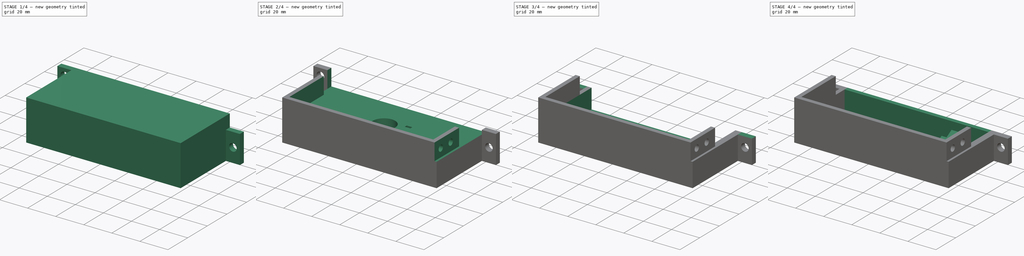
[diagram: build sequence overview — one tinted view per stage of 4, left to right]
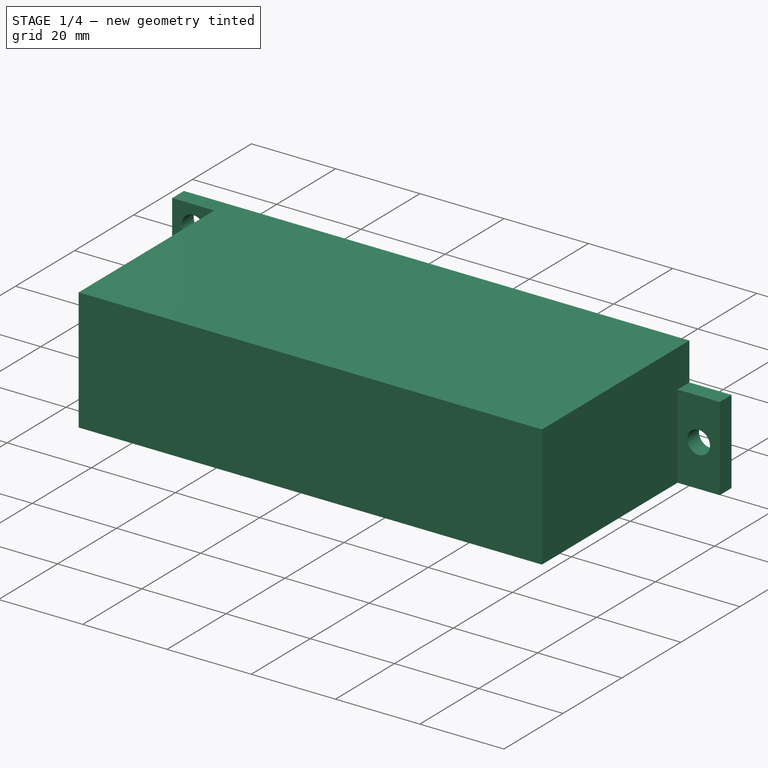
[diagram: stage 1 of 4 — iso view after this stage's code; geometry added in this stage tinted green]
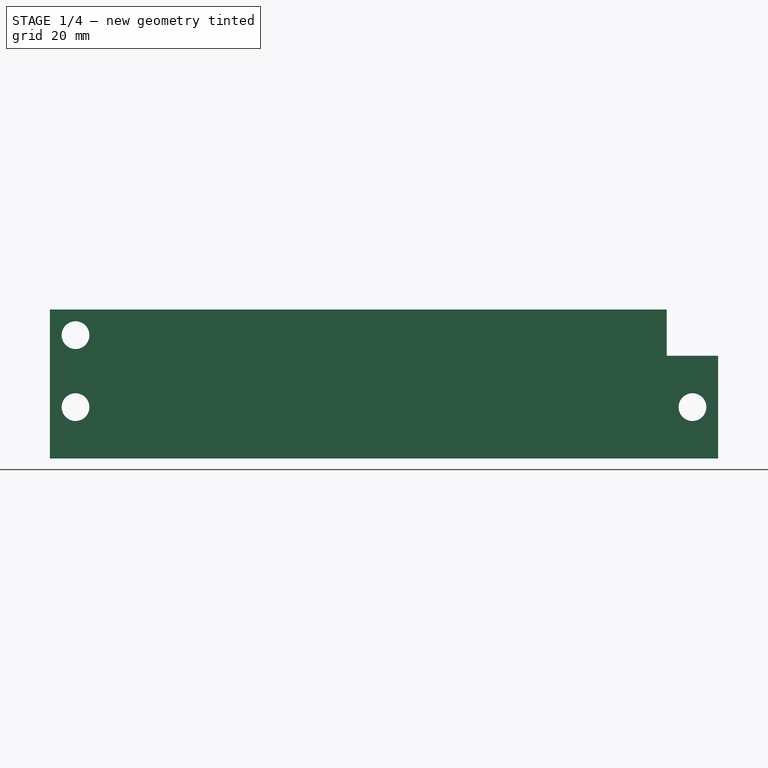
[diagram: stage 1 of 4 — front view after this stage's code; geometry added in this stage tinted green]
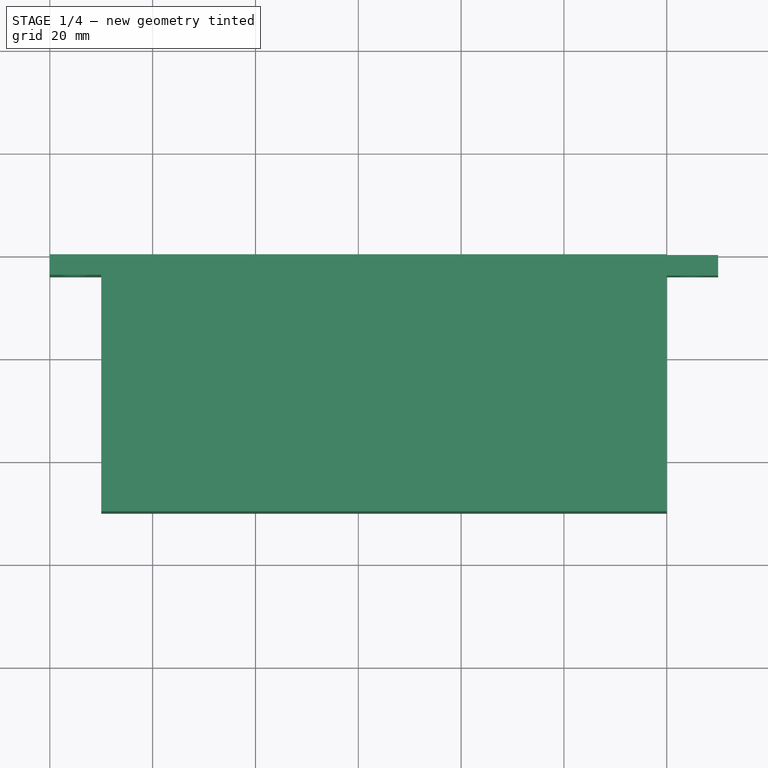
[diagram: stage 1 of 4 — top view after this stage's code; geometry added in this stage tinted green]
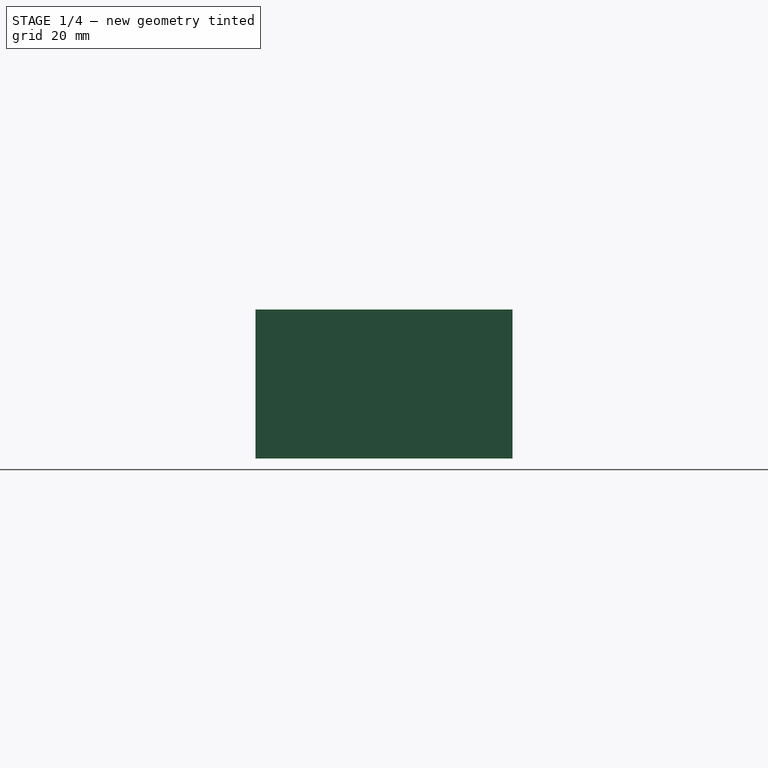
[diagram: stage 1 of 4 — right view after this stage's code; geometry added in this stage tinted green]
FCSTD DOCUMENT  (FreeCAD 0.18RUnknown)
Label: psu_holder
License: All rights reserved
LicenseURL: http://en.wikipedia.org/wiki/All_rights_reserved
objects: Sketcher::SketchObject×9, PartDesign::Pocket×6, PartDesign::Pad×3, PartDesign::Line×1, PartDesign::PolarPattern×1, PartDesign::Body×1
note: 30 computed .brp shape members not serialized (recipe doc carries the construction recipe); baked Part::Feature solids carry a one-line shape summary decoded from their .brp

FEATURE [Sketcher::SketchObject] Sketch
  MapMode = 5
  Support = -> [XY_Plane]
  sketch-geometry (8):
    g0: LineSegment StartX=0 StartY=0 StartZ=0 EndX=130 EndY=0 EndZ=0
    g1: LineSegment StartX=130 StartY=0 StartZ=0 EndX=130 EndY=-4 EndZ=0
    g2: LineSegment StartX=130 StartY=-4 StartZ=0 EndX=120 EndY=-4 EndZ=0
    g3: LineSegment StartX=120 StartY=-4 StartZ=0 EndX=120 EndY=-50 EndZ=0
    g4: LineSegment StartX=120 StartY=-50 StartZ=0 EndX=10 EndY=-50 EndZ=0
    g5: LineSegment StartX=10 StartY=-50 StartZ=0 EndX=10 EndY=-4 EndZ=0
    g6: LineSegment StartX=10 StartY=-4 StartZ=0 EndX=0 EndY=-4 EndZ=0
    g7: LineSegment StartX=0 StartY=-4 StartZ=0 EndX=0 EndY=0 EndZ=0
  constraints (23):
    c: Coincident(g-1,g0)
    c: PointOnObject(g0,g-1)
    c: Coincident(g0,g1)
    c: Vertical(g1)
    c: Coincident(g1,g2)
    c: Horizontal(g2)
    c: Coincident(g2,g3)
    c: Coincident(g3,g4)
    c: Horizontal(g4)
    c: Coincident(g4,g5)
    c: Vertical(g5)
    c: Coincident(g5,g6)
    c: Coincident(g6,g7)
    c: Coincident(g7,g0)
    c: Horizontal(g6)
    c: Vertical(g3)
    c: Equal(g6,g2)
    c: DistanceX(g6,g6) = 10
    c: PointOnObject(g6,g-2)
    c: Equal(g7,g1)
    c: DistanceY(g7,g7) = 4
    c: DistanceX(g4,g4) = 110
    c: DistanceY(g3,g0) = 50
FEATURE [PartDesign::Pad] Pad
  Length = 29
  Length2 = 100
  Profile = -> Sketch
  Type = 0
FEATURE [Sketcher::SketchObject] Sketch001
  ExternalGeometry = -> [Pad]
  MapMode = 5
  Placement = pos=(0,-50,0) rot=(1,0,0;1.5708rad)
  Support = -> [Pad]
  sketch-geometry (7):
    g0: Circle CenterX=5 CenterY=10 CenterZ=0 NormalX=0 NormalY=0 NormalZ=1 AngleXU=0 Radius=2.7
    g1: Circle CenterX=5 CenterY=24 CenterZ=0 NormalX=0 NormalY=0 NormalZ=1 AngleXU=0 Radius=2.7
    g2: Circle CenterX=125 CenterY=10 CenterZ=0 NormalX=0 NormalY=0 NormalZ=1 AngleXU=0 Radius=2.7
    g3: LineSegment StartX=120 StartY=29 StartZ=0 EndX=130 EndY=29 EndZ=0
    g4: LineSegment StartX=130 StartY=29 StartZ=0 EndX=130 EndY=20 EndZ=0
    g5: LineSegment StartX=130 StartY=20 StartZ=0 EndX=120 EndY=20 EndZ=0
    g6: LineSegment StartX=120 StartY=20 StartZ=0 EndX=120 EndY=29 EndZ=0
  constraints (19):
    c: Equal(g1,g0)
    c: Equal(g0,g2)
    c: Radius(g0) = 2.7
    c: Vertical(g1,g0)
    c: Horizontal(g0,g2)
    c: DistanceX(g-1,g0) = 5
    c: DistanceY(g-1,g0) = 10
    c: DistanceY(g1,g-3) = 5
    c: DistanceX(g2,g-4) = 5
    c: Coincident(g3,g4)
    c: Coincident(g4,g5)
    c: Coincident(g5,g6)
    c: Coincident(g6,g3)
    c: Horizontal(g5)
    c: Vertical(g4)
    c: Vertical(g6)
    c: Coincident(g3,g-5)
    c: Coincident(g3,g-5)
    c: DistanceY(g2,g4) = 10
FEATURE [PartDesign::Pocket] Pocket
  BaseFeature = -> Pad
  Length = 5
  Length2 = 100
  Profile = -> Sketch001
  Type = 1
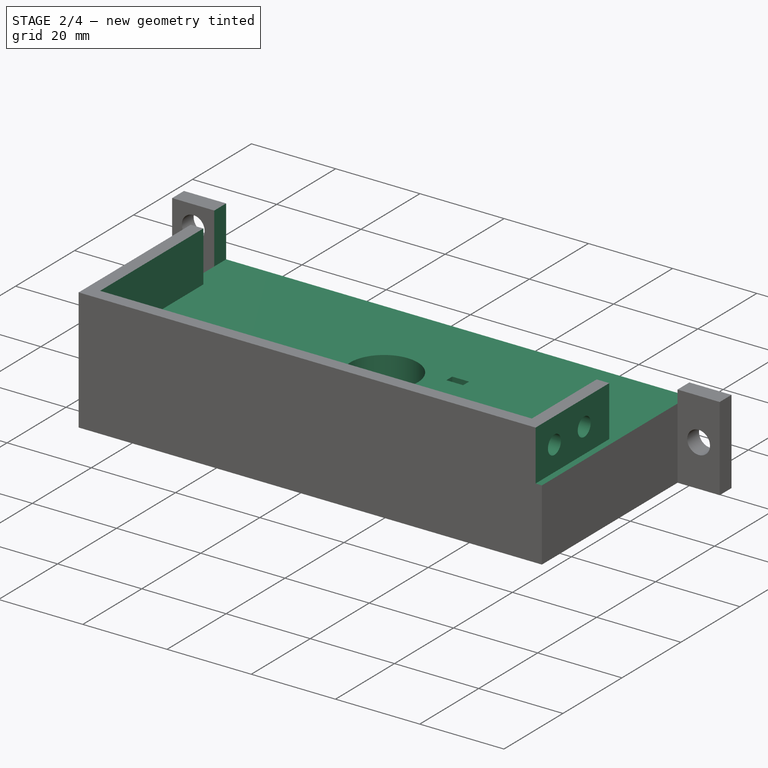
[diagram: stage 2 of 4 — iso view after this stage's code; geometry added in this stage tinted green]
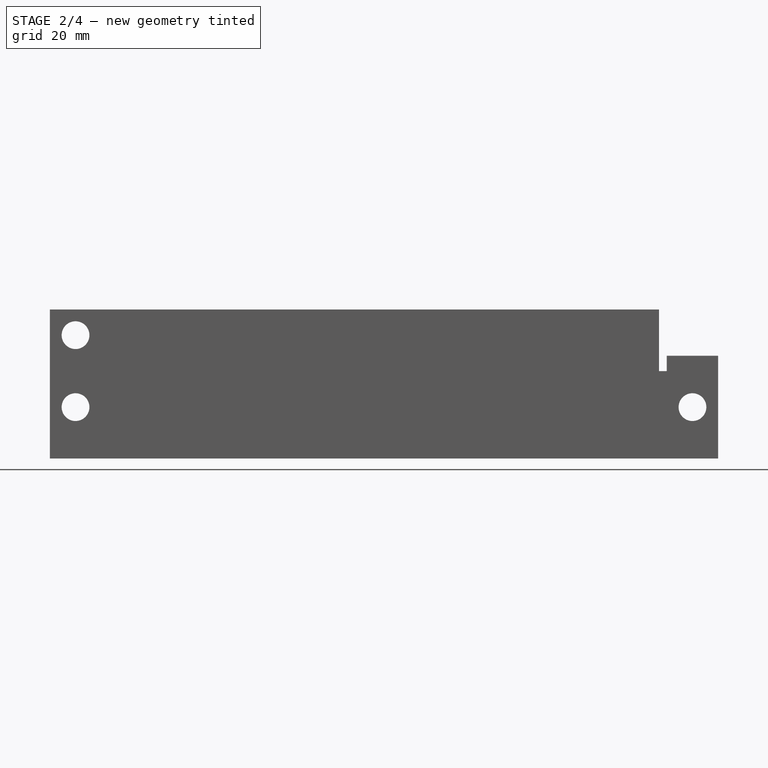
[diagram: stage 2 of 4 — front view after this stage's code; geometry added in this stage tinted green]
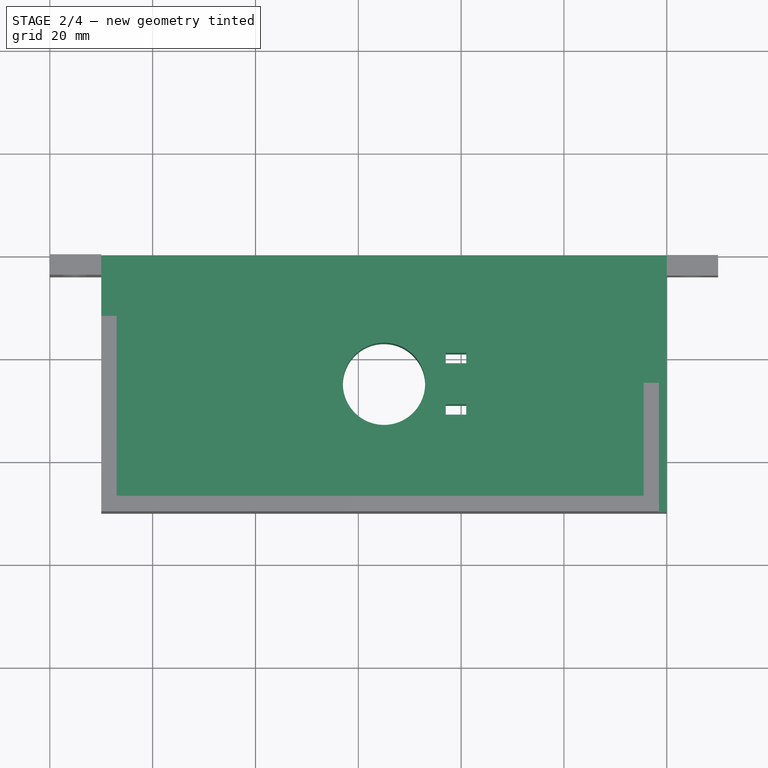
[diagram: stage 2 of 4 — top view after this stage's code; geometry added in this stage tinted green]
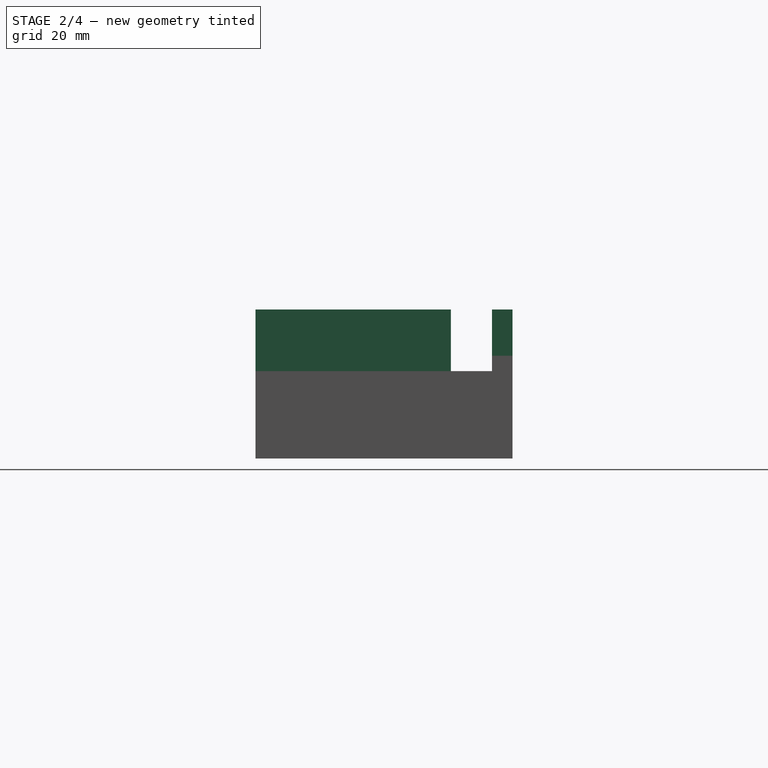
[diagram: stage 2 of 4 — right view after this stage's code; geometry added in this stage tinted green]
FEATURE [Sketcher::SketchObject] Sketch002
  ExternalGeometry = -> [Pocket]
  MapMode = 5
  Placement = pos=(0,0,29) rot=(0,0,1;0rad)
  Support = -> [Pocket]
  sketch-geometry (10):
    g0: LineSegment StartX=10 StartY=0 StartZ=0 EndX=120 EndY=0 EndZ=0
    g1: LineSegment StartX=120 StartY=0 StartZ=0 EndX=120 EndY=-50 EndZ=0
    g2: LineSegment StartX=120 StartY=-50 StartZ=0 EndX=118.5 EndY=-50 EndZ=0
    g3: LineSegment StartX=118.5 StartY=-50 StartZ=0 EndX=118.5 EndY=-25 EndZ=0
    g4: LineSegment StartX=118.5 StartY=-25 StartZ=0 EndX=115.5 EndY=-25 EndZ=0
    g5: LineSegment StartX=115.5 StartY=-25 StartZ=0 EndX=115.5 EndY=-47 EndZ=0
    g6: LineSegment StartX=115.5 StartY=-47 StartZ=0 EndX=13 EndY=-47 EndZ=0
    g7: LineSegment StartX=13 StartY=-47 StartZ=0 EndX=13 EndY=-12 EndZ=0
    g8: LineSegment StartX=13 StartY=-12 StartZ=0 EndX=10 EndY=-12 EndZ=0
    g9: LineSegment StartX=10 StartY=-12 StartZ=0 EndX=10 EndY=0 EndZ=0
  constraints (29):
    c: Horizontal(g0)
    c: Coincident(g0,g1)
    c: Vertical(g1)
    c: Coincident(g1,g2)
    c: Coincident(g2,g3)
    c: Vertical(g3)
    c: Coincident(g3,g4)
    c: Coincident(g4,g5)
    c: Vertical(g5)
    c: Coincident(g5,g6)
    c: Horizontal(g6)
    c: Coincident(g6,g7)
    c: Coincident(g7,g8)
    c: Coincident(g8,g9)
    c: Coincident(g9,g0)
    c: Horizontal(g0,g-1)
    c: PointOnObject(g8,g-3)
    c: Vertical(g9)
    c: DistanceY(g9,g9) = 12
    c: Horizontal(g8)
    c: Vertical(g7)
    c: DistanceX(g8,g8) = 3
    c: DistanceY(g-3,g6) = 3
    c: Horizontal(g4)
    c: DistanceX(g2,g2) = 1.5
    c: DistanceX(g4,g4) = 3
    c: DistanceY(g3,g3) = 25
    c: Horizontal(g2)
    c: Coincident(g1,g-4)
FEATURE [PartDesign::Pocket] Pocket001
  BaseFeature = -> Pocket
  Length = 12
  Length2 = 100
  Profile = -> Sketch002
  Type = 0
FEATURE [Sketcher::SketchObject] Sketch005
  ExternalGeometry = -> [Pocket001]
  MapMode = 5
  Placement = pos=(118.5,0,0) rot=(0.57735,0.57735,0.57735;2.0944rad)
  Support = -> [Pocket001]
  sketch-geometry (2):
    g0: Circle CenterX=-43.6 CenterY=22.9 CenterZ=0 NormalX=0 NormalY=0 NormalZ=1 AngleXU=0 Radius=2.2
    g1: Circle CenterX=-33.5 CenterY=22.9 CenterZ=0 NormalX=0 NormalY=0 NormalZ=1 AngleXU=0 Radius=2.2
  constraints (6):
    c: Horizontal(g1,g0)
    c: Equal(g1,g0)
    c: DistanceX(g0,g1) = 10.1
    c: Radius(g0) = 2.2
    c: DistanceX(g-3,g0) = 6.4
    c: DistanceY(g-3,g0) = 5.9
FEATURE [PartDesign::Pocket] Pocket003
  BaseFeature = -> Pocket001
  Length = 10
  Length2 = 100
  Profile = -> Sketch005
  Type = 0
FEATURE [Sketcher::SketchObject] Sketch006
  ExternalGeometry = -> [Pocket003]
  MapMode = 5
  Placement = pos=(0,0,0) rot=(1,0,0;3.14159rad)
  Support = -> [Pocket003]
  sketch-geometry (13):
    g0: Circle CenterX=65 CenterY=25 CenterZ=0 NormalX=0 NormalY=0 NormalZ=1 AngleXU=0 Radius=8
    g1: LineSegment [constr] StartX=65 StartY=25 StartZ=0 EndX=65 EndY=50 EndZ=0
    g2: LineSegment [constr] StartX=65 StartY=25 StartZ=0 EndX=65 EndY=0 EndZ=0
    g3: LineSegment [constr] StartX=65 StartY=25 StartZ=0 EndX=10 EndY=25 EndZ=0
    g4: LineSegment [constr] StartX=65 StartY=25 StartZ=0 EndX=120 EndY=25 EndZ=0
    g5: LineSegment StartX=77 StartY=31 StartZ=0 EndX=81 EndY=31 EndZ=0
    g6: LineSegment StartX=81 StartY=31 StartZ=0 EndX=81 EndY=29 EndZ=0
    g7: LineSegment StartX=81 StartY=29 StartZ=0 EndX=77 EndY=29 EndZ=0
    g8: LineSegment StartX=77 StartY=29 StartZ=0 EndX=77 EndY=31 EndZ=0
    g9: LineSegment StartX=77 StartY=19 StartZ=0 EndX=81 EndY=19 EndZ=0
    g10: LineSegment StartX=81 StartY=19 StartZ=0 EndX=81 EndY=21 EndZ=0
    g11: LineSegment StartX=81 StartY=21 StartZ=0 EndX=77 EndY=21 EndZ=0
    g12: LineSegment StartX=77 StartY=21 StartZ=0 EndX=77 EndY=19 EndZ=0
  constraints (39):
    c: Radius(g0) = 8
    c: Coincident(g1,g0)
    c: Vertical(g1)
    c: Coincident(g2,g0)
    c: PointOnObject(g2,g-1)
    c: Vertical(g2)
    c: Coincident(g3,g0)
    c: Horizontal(g3)
    c: Coincident(g4,g0)
    c: Horizontal(g4)
    c: Equal(g4,g3)
    c: Equal(g1,g2)
    c: Coincident(g5,g6)
    c: Coincident(g6,g7)
    c: Coincident(g7,g8)
    c: Coincident(g8,g5)
    c: Horizontal(g5)
    c: Horizontal(g7)
    c: Vertical(g6)
    c: Vertical(g8)
    c: DistanceX(g5,g5) = 4
    c: DistanceY(g6,g6) = 2
    c: DistanceX(g0,g7) = 12  'd1'
    c: DistanceY(g0,g7) = 4
    c: Coincident(g9,g10)
    c: Coincident(g10,g11)
    c: Coincident(g11,g12)
    c: Coincident(g12,g9)
    c: Horizontal(g9)
    c: Horizontal(g11)
    c: Vertical(g10)
    c: Vertical(g12)
    c: DistanceX(g0,g11) = 12
    c: DistanceY(g11,g0) = 4
    c: Equal(g5,g11)
    c: Equal(g8,g12)
    c: PointOnObject(g1,g-3)
    c: PointOnObject(g3,g-5)
    c: PointOnObject(g4,g-6)
FEATURE [PartDesign::Pocket] Pocket004
  BaseFeature = -> Pocket003
  Length = 5
  Length2 = 100
  Profile = -> Sketch006
  Type = 1
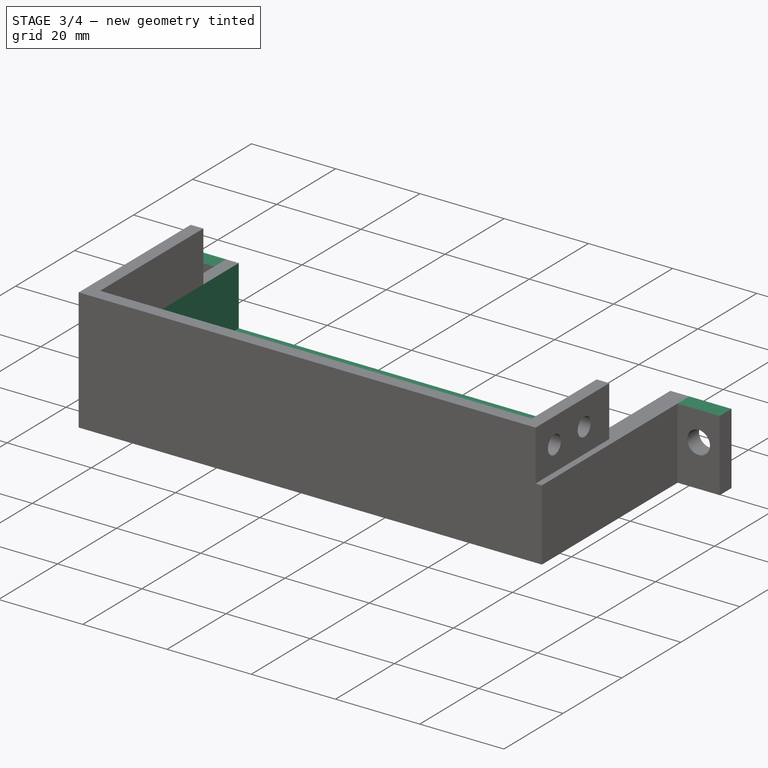
[diagram: stage 3 of 4 — iso view after this stage's code; geometry added in this stage tinted green]
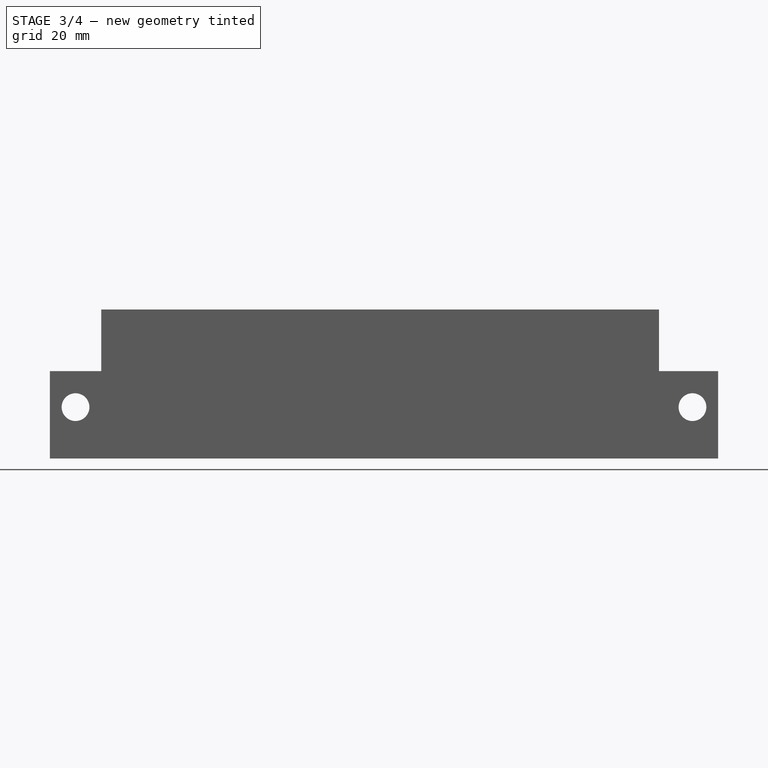
[diagram: stage 3 of 4 — front view after this stage's code; geometry added in this stage tinted green]
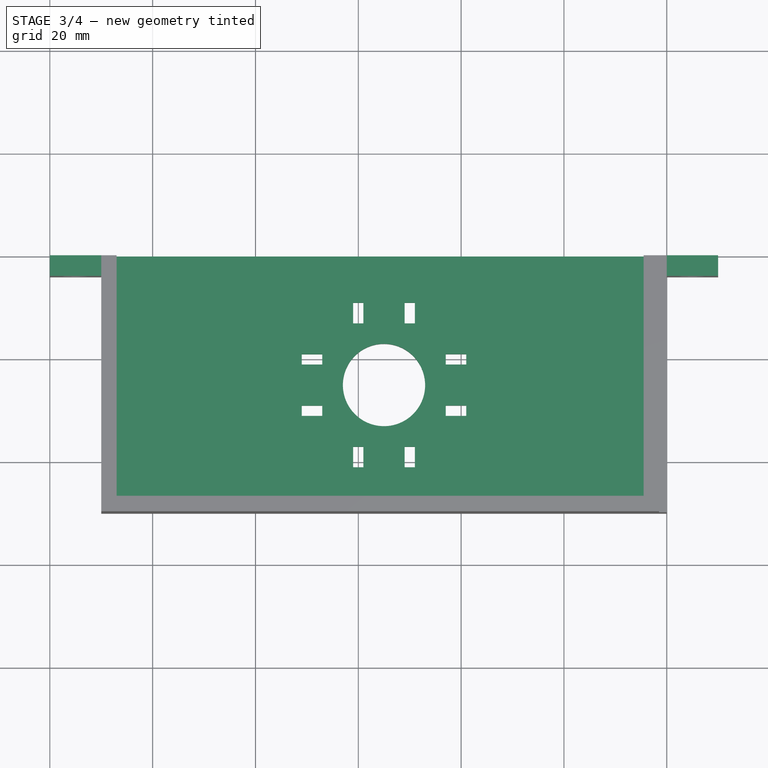
[diagram: stage 3 of 4 — top view after this stage's code; geometry added in this stage tinted green]
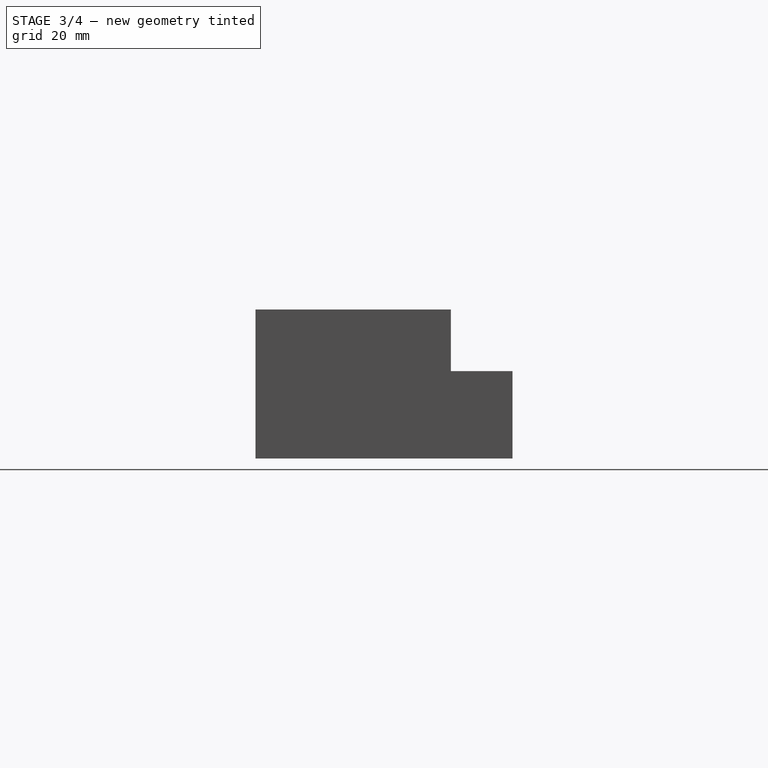
[diagram: stage 3 of 4 — right view after this stage's code; geometry added in this stage tinted green]
FEATURE [PartDesign::Line] DatumLine
  AttacherType = Attacher::AttachEngineLine
  MapMode = 19
  Placement = pos=(65,-25,17) rot=(-1,0,0;3.14159rad)
  Support = -> [Pocket004]
FEATURE [PartDesign::PolarPattern] PolarPattern
  Angle = 360
  Axis = -> DatumLine
  BaseFeature = -> Pocket004
  Occurrences = 4
  Originals = -> [Pocket004]
FEATURE [Sketcher::SketchObject] Sketch007
  ExternalGeometry = -> [PolarPattern]
  MapMode = 5
  Placement = pos=(0,0,29) rot=(0,0,1;0rad)
  Support = -> [PolarPattern]
  sketch-geometry (4):
    g0: LineSegment StartX=13 StartY=-47 StartZ=0 EndX=115.5 EndY=-47 EndZ=0
    g1: LineSegment StartX=115.5 StartY=-47 StartZ=0 EndX=115.5 EndY=0 EndZ=0
    g2: LineSegment StartX=115.5 StartY=0 StartZ=0 EndX=13 EndY=0 EndZ=0
    g3: LineSegment StartX=13 StartY=0 StartZ=0 EndX=13 EndY=-47 EndZ=0
  constraints (8):
    c: Coincident(g0,g1)
    c: Coincident(g1,g2)
    c: Coincident(g2,g3)
    c: Coincident(g3,g0)
    c: Horizontal(g2)
    c: Vertical(g1)
    c: Vertical(g3)
    c: PointOnObject(g1,g-1)
FEATURE [PartDesign::Pocket] Pocket005
  BaseFeature = -> PolarPattern
  Length = 26
  Length2 = 100
  Profile = -> Sketch007
  Type = 0
FEATURE [Sketcher::SketchObject] Sketch008
  ExternalGeometry = -> [Pocket005]
  MapMode = 5
  Placement = pos=(0,0,0) rot=(0,0.707107,0.707107;3.14159rad)
  Support = -> [Pocket005]
  sketch-geometry (4):
    g0: LineSegment StartX=-145 StartY=47 StartZ=0 EndX=5 EndY=47 EndZ=0
    g1: LineSegment StartX=5 StartY=47 StartZ=0 EndX=5 EndY=17 EndZ=0
    g2: LineSegment StartX=5 StartY=17 StartZ=0 EndX=-145 EndY=17 EndZ=0
    g3: LineSegment StartX=-145 StartY=17 StartZ=0 EndX=-145 EndY=47 EndZ=0
  constraints (12):
    c: Coincident(g0,g1)
    c: Coincident(g1,g2)
    c: Coincident(g2,g3)
    c: Coincident(g3,g0)
    c: Horizontal(g0)
    c: Horizontal(g2)
    c: Vertical(g1)
    c: Vertical(g3)
    c: PointOnObject(g-3,g2)
    c: DistanceX(g0,g0) = 150
    c: DistanceY(g3,g3) = 30
    c: DistanceX(g-1,g1) = 5
FEATURE [PartDesign::Pocket] Pocket006
  BaseFeature = -> Pocket005
  Length = 5
  Length2 = 100
  Profile = -> Sketch008
  Type = 0
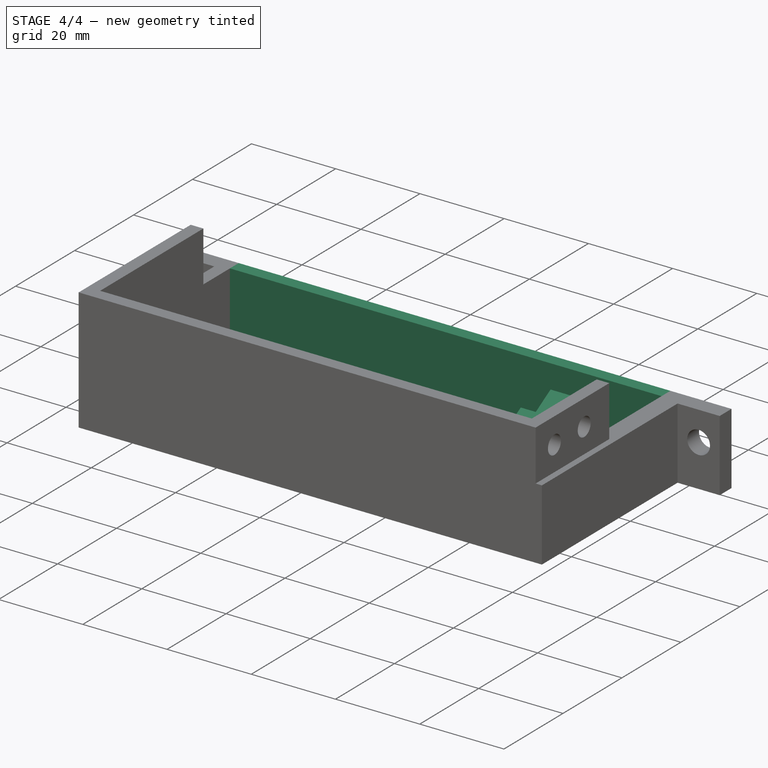
[diagram: stage 4 of 4 — iso view after this stage's code; geometry added in this stage tinted green]
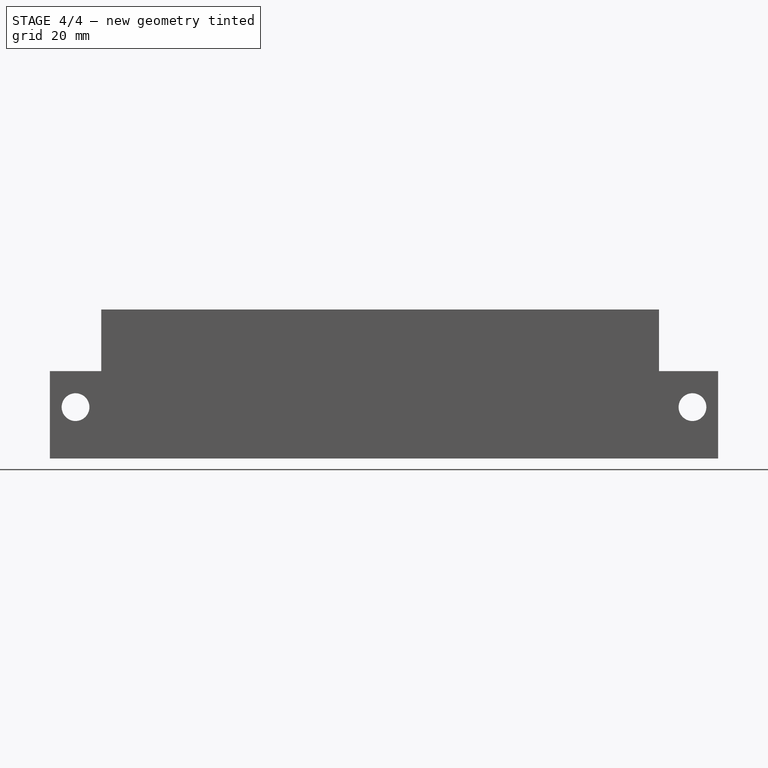
[diagram: stage 4 of 4 — front view after this stage's code; geometry added in this stage tinted green]
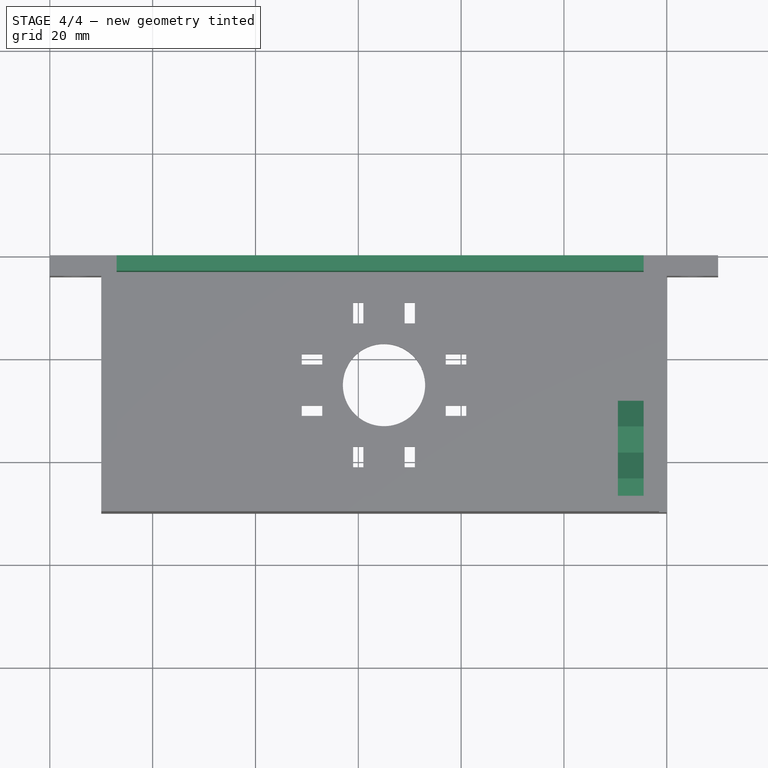
[diagram: stage 4 of 4 — top view after this stage's code; geometry added in this stage tinted green]
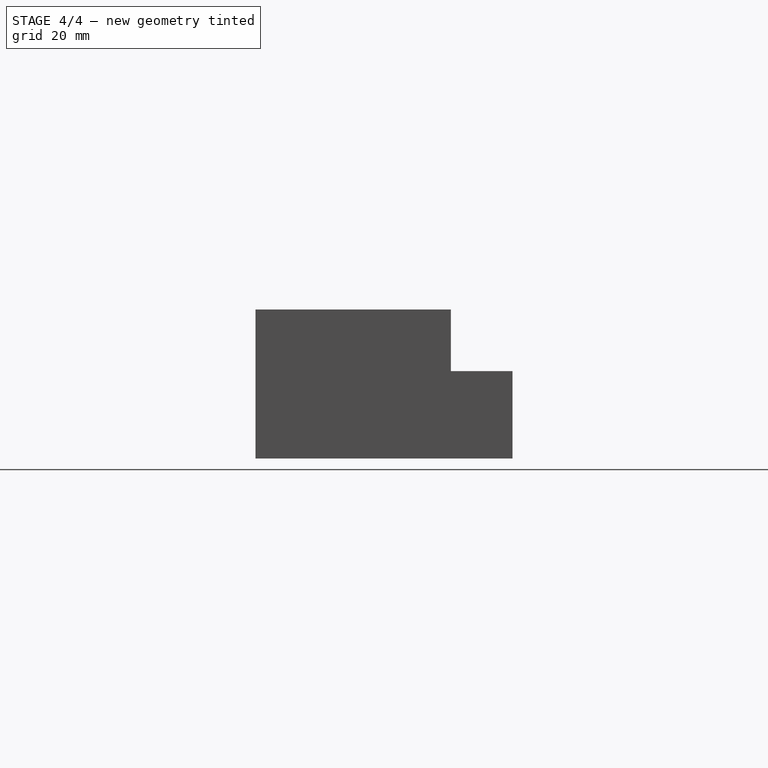
[diagram: stage 4 of 4 — right view after this stage's code; geometry added in this stage tinted green]
FEATURE [Sketcher::SketchObject] Sketch009
  ExternalGeometry = -> [Pocket006]
  MapMode = 5
  Placement = pos=(115.5,0,0) rot=(0.57735,-0.57735,-0.57735;2.0944rad)
  Support = -> [Pocket006]
  sketch-geometry (28):
    g0: LineSegment StartX=37 StartY=20.8793 StartZ=0 EndX=37 EndY=24.9207 EndZ=0
    g1: LineSegment StartX=37 StartY=24.9207 StartZ=0 EndX=33.5 EndY=26.9415 EndZ=0
    g2: LineSegment StartX=33.5 StartY=26.9415 StartZ=0 EndX=30 EndY=24.9207 EndZ=0
    g3: LineSegment StartX=30 StartY=24.9207 StartZ=0 EndX=30 EndY=20.8793 EndZ=0
    g4: LineSegment StartX=30 StartY=20.8793 StartZ=0 EndX=33.5 EndY=18.8585 EndZ=0
    g5: LineSegment StartX=33.5 StartY=18.8585 StartZ=0 EndX=37 EndY=20.8793 EndZ=0
    g6: Circle [constr] CenterX=33.5 CenterY=22.9 CenterZ=0 NormalX=0 NormalY=0 NormalZ=1 AngleXU=0 Radius=4.04145
    g7: LineSegment StartX=40.15 StartY=20.9081 StartZ=0 EndX=43.6 EndY=18.9163 EndZ=0
    g8: LineSegment StartX=43.6 StartY=18.9163 StartZ=0 EndX=47.05 EndY=20.9081 EndZ=0
    g9: LineSegment StartX=47.05 StartY=20.9081 StartZ=0 EndX=47.05 EndY=24.8919 EndZ=0
    g10: LineSegment StartX=47.05 StartY=24.8919 StartZ=0 EndX=43.6 EndY=26.8837 EndZ=0
    g11: LineSegment StartX=43.6 StartY=26.8837 StartZ=0 EndX=40.15 EndY=24.8919 EndZ=0
    g12: LineSegment StartX=40.15 StartY=24.8919 StartZ=0 EndX=40.15 EndY=20.9081 EndZ=0
    g13: Circle [constr] CenterX=43.6 CenterY=22.9 CenterZ=0 NormalX=0 NormalY=0 NormalZ=1 AngleXU=0 Radius=3.98372
    g14: LineSegment [constr] StartX=38.55 StartY=19.9844 StartZ=0 EndX=38.55 EndY=25.8156 EndZ=0
    g15: LineSegment StartX=38.55 StartY=25.8156 StartZ=0 EndX=33.5 EndY=28.7312 EndZ=0
    g16: LineSegment StartX=33.5 StartY=28.7312 StartZ=0 EndX=28.45 EndY=25.8156 EndZ=0
    g17: LineSegment StartX=28.45 StartY=25.8156 StartZ=0 EndX=28.45 EndY=19.9844 EndZ=0
    g18: LineSegment StartX=28.45 StartY=19.9844 StartZ=0 EndX=33.5 EndY=17.0688 EndZ=0
    g19: LineSegment StartX=33.5 StartY=17.0688 StartZ=0 EndX=38.55 EndY=19.9844 EndZ=0
    g20: Circle [constr] CenterX=33.5 CenterY=22.9 CenterZ=0 NormalX=0 NormalY=0 NormalZ=1 AngleXU=0 Radius=5.83124
    g21: LineSegment StartX=43.6 StartY=17.0688 StartZ=0 EndX=48.65 EndY=19.9844 EndZ=0
    g22: LineSegment StartX=48.65 StartY=19.9844 StartZ=0 EndX=48.65 EndY=25.8156 EndZ=0
    g23: LineSegment StartX=48.65 StartY=25.8156 StartZ=0 EndX=43.6 EndY=28.7312 EndZ=0
    g24: LineSegment StartX=43.6 StartY=28.7312 StartZ=0 EndX=38.55 EndY=25.8156 EndZ=0
    g25: LineSegment [constr] StartX=38.55 StartY=25.8156 StartZ=0 EndX=38.55 EndY=19.9844 EndZ=0
    g26: LineSegment StartX=38.55 StartY=19.9844 StartZ=0 EndX=43.6 EndY=17.0688 EndZ=0
    g27: Circle [constr] CenterX=43.6 CenterY=22.9 CenterZ=0 NormalX=0 NormalY=0 NormalZ=1 AngleXU=0 Radius=5.83124
  constraints (63):
    c: Coincident(g0,g1)
    c: Coincident(g1,g2)
    c: Coincident(g2,g3)
    c: Coincident(g3,g4)
    c: Coincident(g4,g5)
    c: Coincident(g5,g0)
    c: Equal(g0, g1-g5) x5
    c: PointOnObject(g0,g6)
    c: PointOnObject(g1,g6)
    c: PointOnObject(g2,g6)
    c: PointOnObject(g3,g6)
    c: PointOnObject(g4,g6)
    c: PointOnObject(g5,g6)
    c: Coincident(g6,g-3)
    c: Coincident(g7,g8)
    c: Coincident(g8,g9)
    c: Coincident(g9,g10)
    c: Coincident(g10,g11)
    c: Coincident(g11,g12)
    c: Coincident(g12,g7)
    c: Equal(g7, g8-g12) x5
    c: PointOnObject(g7,g13)
    c: PointOnObject(g8,g13)
    c: PointOnObject(g9,g13)
    c: PointOnObject(g10,g13)
    c: PointOnObject(g11,g13)
    c: PointOnObject(g12,g13)
    c: Coincident(g13,g-4)
    c: Vertical(g0)
    c: Vertical(g12)
    c: DistanceX(g2,g0) = 7
    c: DistanceX(g11,g9) = 6.9
    c: Coincident(g14,g15)
    c: Coincident(g15,g16)
    c: Coincident(g16,g17)
    c: Coincident(g17,g18)
    c: Coincident(g18,g19)
    c: Coincident(g19,g14)
    c: Equal(g14, g15-g19) x5
    c: PointOnObject(g14,g20)
    c: PointOnObject(g15,g20)
    c: PointOnObject(g16,g20)
    c: PointOnObject(g17,g20)
    c: PointOnObject(g18,g20)
    c: PointOnObject(g19,g20)
    c: Coincident(g20,g6)
    c: Vertical(g14)
    c: Coincident(g21,g22)
    c: Coincident(g22,g23)
    c: Coincident(g23,g24)
    c: Coincident(g24,g25)
    c: Coincident(g25,g26)
    c: Coincident(g26,g21)
    c: Equal(g21, g22-g26) x5
    c: PointOnObject(g21,g27)
    c: PointOnObject(g22,g27)
    c: PointOnObject(g23,g27)
    c: PointOnObject(g24,g27)
    c: PointOnObject(g25,g27)
    c: PointOnObject(g26,g27)
    c: Coincident(g27,g13)
    c: Vertical(g25)
    c: Coincident(g24,g15)
FEATURE [PartDesign::Pad] Pad001
  BaseFeature = -> Pocket006
  Length = 5
  Length2 = 100
  Profile = -> Sketch009
  Type = 0
FEATURE [Sketcher::SketchObject] Sketch010
  ExternalGeometry = -> [Pad001]
  MapMode = 5
  Placement = pos=(0,0,3) rot=(0,0,1;0rad)
  Support = -> [Pad001]
  sketch-geometry (4):
    g0: LineSegment StartX=13 StartY=0 StartZ=0 EndX=115.5 EndY=0 EndZ=0
    g1: LineSegment StartX=115.5 StartY=0 StartZ=0 EndX=115.5 EndY=-3 EndZ=0
    g2: LineSegment StartX=115.5 StartY=-3 StartZ=0 EndX=13 EndY=-3 EndZ=0
    g3: LineSegment StartX=13 StartY=-3 StartZ=0 EndX=13 EndY=0 EndZ=0
  constraints (10):
    c: Coincident(g0,g1)
    c: Coincident(g1,g2)
    c: Coincident(g2,g3)
    c: Coincident(g3,g0)
    c: Horizontal(g2)
    c: Vertical(g1)
    c: Vertical(g3)
    c: Coincident(g0,g-3)
    c: Coincident(g0,g-4)
    c: DistanceY(g3,g3) = 3
FEATURE [PartDesign::Pad] Pad002
  BaseFeature = -> Pad001
  Length = 10
  Length2 = 100
  Profile = -> Sketch010
  Type = 3
  UpToFace = -> Pad001 [Face9]
FEATURE [PartDesign::Body] Body
  Group = -> [Sketch,Pad,Sketch001,Pocket,Sketch002,Pocket001,Sketch005,Pocket003,Sketch006,Pocket004,DatumLine,PolarPattern,Sketch007,Pocket005,Sketch008,Pocket006,Sketch009,Pad001,Sketch010,Pad002]
  Origin = -> Origin
  Tip = -> Pad002
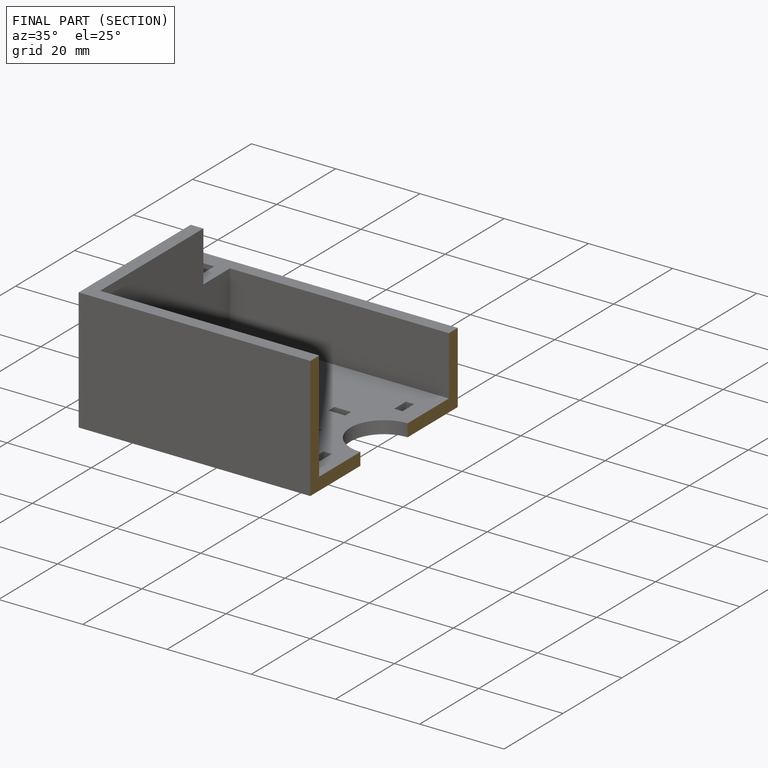
[diagram: finished part — half-section view (interior)]
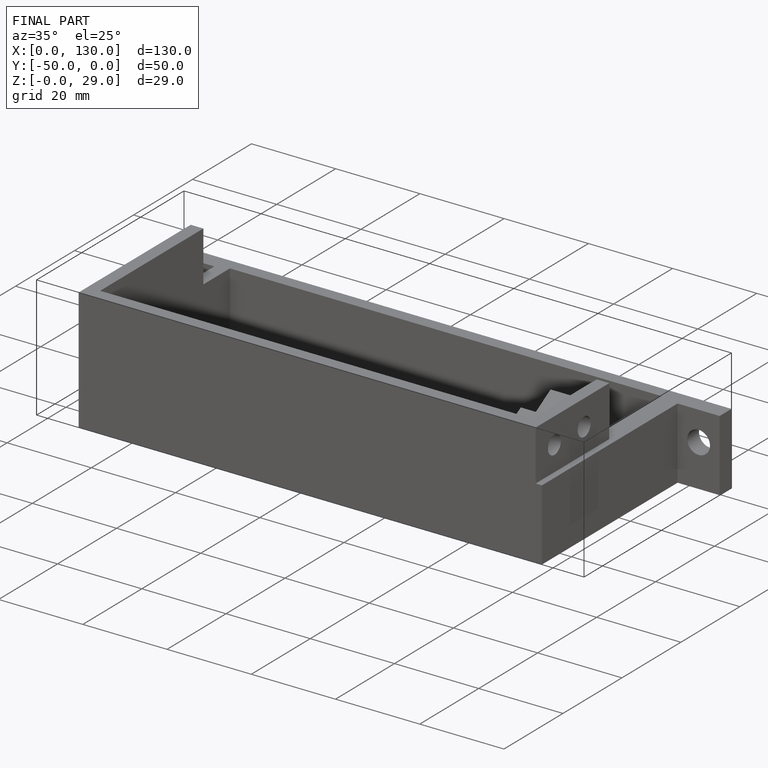
[diagram: finished part — iso view with bounding-box wireframe]
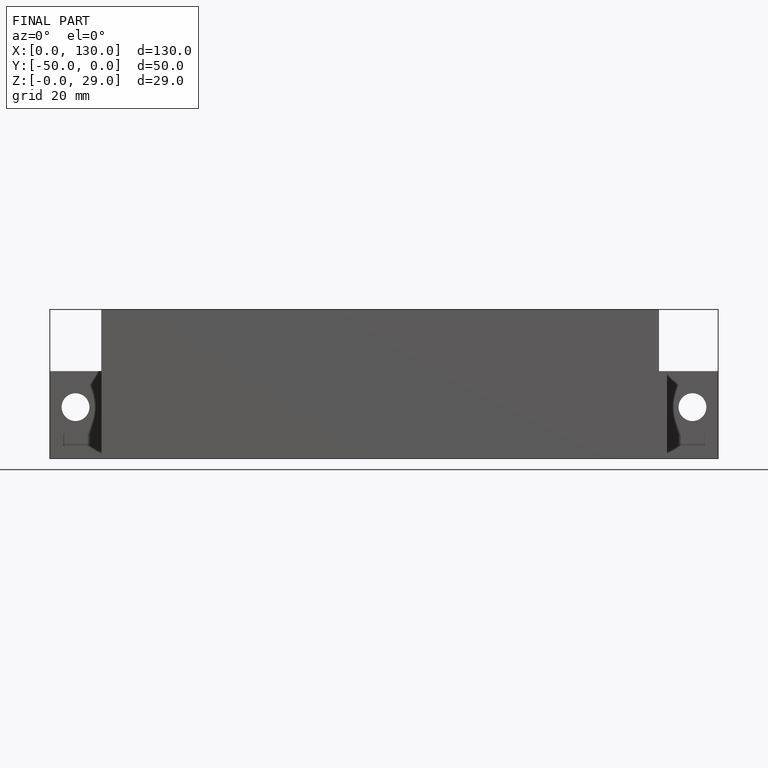
[diagram: finished part — front view with bounding-box wireframe]
